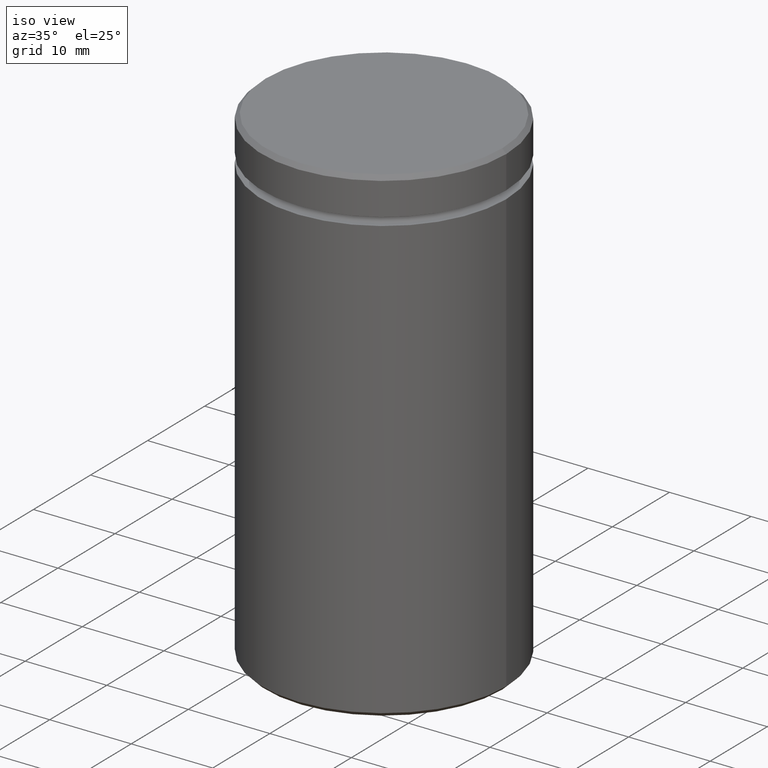
[diagram: clean part render]
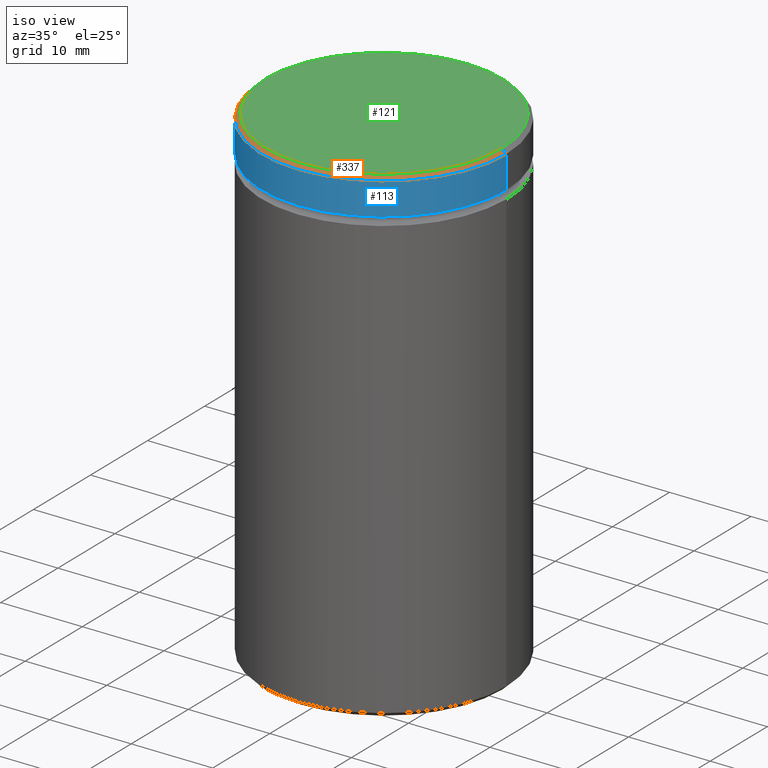
[diagram: same view with three faces highlighted in distinct colors, each labeled with its STEP entity id]
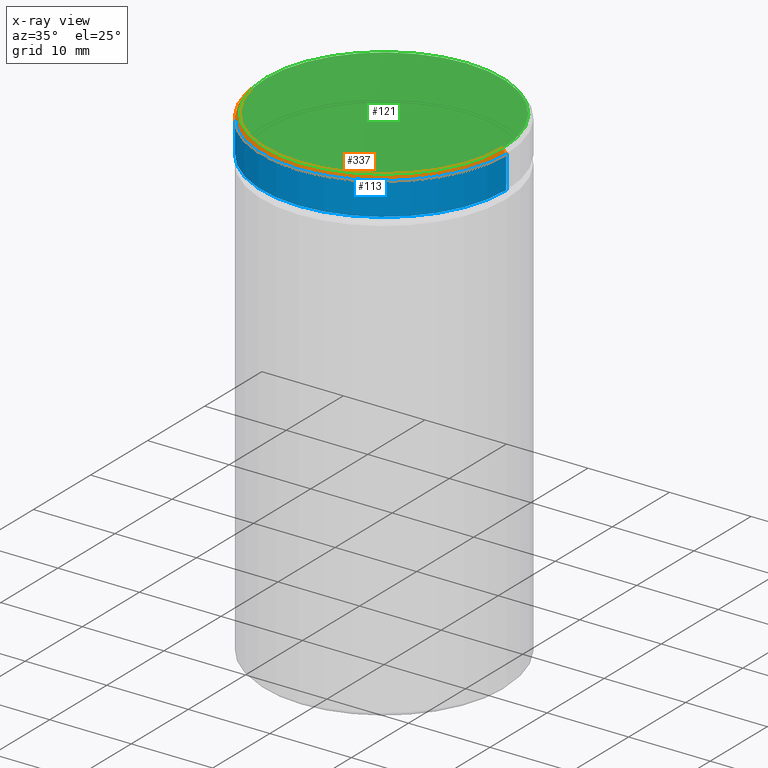
[diagram: x-ray of the same camera — body ghosted, the three highlighted faces saturated]
A machine part, iso view with three faces highlighted in distinct colors.
The next image is the same camera in x-ray (body ghosted, the three faces saturated) — at least one of them is partly hidden behind the body in this view.
Their STEP definitions:

[orange] entity #337 — the highlighted conical surface has half-angle 45 deg.
#23 = AXIS2_PLACEMENT_3D ( 'NONE', #543, #449, #267 ) ;
#29 = DIRECTION ( 'NONE',  ( 1.000000000000000000, 0.000000000000000000, 0.000000000000000000 ) ) ;
#36 = EDGE_CURVE ( 'NONE', #322, #448, #150, .T. ) ;
#64 = CARTESIAN_POINT ( 'NONE',  ( -14.50000000000000355, 0.000000000000000000, 0.000000000000000000 ) ) ;
#150 = CIRCLE ( 'NONE', #488, 14.50000000000000355 ) ;
#180 = EDGE_CURVE ( 'NONE', #322, #218, #326, .T. ) ;
#193 = VERTEX_POINT ( 'NONE', #194 ) ;
#194 = CARTESIAN_POINT ( 'NONE',  ( 15.00000000000000000, 0.000000000000000000, -0.5000000000000038858 ) ) ;
#200 = CIRCLE ( 'NONE', #510, 15.00000000000000000 ) ;
#203 = VECTOR ( 'NONE', #264, 1000.000000000000000 ) ;
#218 = VERTEX_POINT ( 'NONE', #555 ) ;
#230 = CARTESIAN_POINT ( 'NONE',  ( -14.50000000000000355, 0.000000000000000000, 0.000000000000000000 ) ) ;
#238 = DIRECTION ( 'NONE',  ( -0.7071067811865414665, 0.000000000000000000, -0.7071067811865536790 ) ) ;
#254 = CARTESIAN_POINT ( 'NONE',  ( 0.000000000000000000, 0.000000000000000000, 0.000000000000000000 ) ) ;
#264 = DIRECTION ( 'NONE',  ( 0.7071067811865414665, 8.659560562354858902E-17, -0.7071067811865536790 ) ) ;
#267 = DIRECTION ( 'NONE',  ( -1.000000000000000000, 0.000000000000000000, 0.000000000000000000 ) ) ;
#284 = EDGE_LOOP ( 'NONE', ( #556, #517, #289, #514 ) ) ;
#289 = ORIENTED_EDGE ( 'NONE', *, *, #180, .T. ) ;
#302 = DIRECTION ( 'NONE',  ( 1.000000000000000000, 0.000000000000000000, 0.000000000000000000 ) ) ;
#304 = EDGE_CURVE ( 'NONE', #448, #193, #515, .T. ) ;
#310 = DIRECTION ( 'NONE',  ( 0.000000000000000000, 0.000000000000000000, -1.000000000000000000 ) ) ;
#322 = VERTEX_POINT ( 'NONE', #230 ) ;
#326 = LINE ( 'NONE', #64, #560 ) ;
#337 = ADVANCED_FACE ( 'NONE', ( #484 ), #559, .T. ) ;
#415 = DIRECTION ( 'NONE',  ( -0.000000000000000000, -0.000000000000000000, 1.000000000000000000 ) ) ;
#425 = CARTESIAN_POINT ( 'NONE',  ( 0.000000000000000000, 0.000000000000000000, -0.5000000000000038858 ) ) ;
#442 = CARTESIAN_POINT ( 'NONE',  ( 14.50000000000000355, 1.775737858763662804E-15, 0.000000000000000000 ) ) ;
#448 = VERTEX_POINT ( 'NONE', #500 ) ;
#449 = DIRECTION ( 'NONE',  ( 0.000000000000000000, 0.000000000000000000, -1.000000000000000000 ) ) ;
#484 = FACE_OUTER_BOUND ( 'NONE', #284, .T. ) ;
#488 = AXIS2_PLACEMENT_3D ( 'NONE', #254, #415, #29 ) ;
#500 = CARTESIAN_POINT ( 'NONE',  ( 14.50000000000000355, 1.806354028742346196E-15, 0.000000000000000000 ) ) ;
#510 = AXIS2_PLACEMENT_3D ( 'NONE', #425, #310, #302 ) ;
#514 = ORIENTED_EDGE ( 'NONE', *, *, #546, .F. ) ;
#515 = LINE ( 'NONE', #442, #203 ) ;
#517 = ORIENTED_EDGE ( 'NONE', *, *, #36, .F. ) ;
#543 = CARTESIAN_POINT ( 'NONE',  ( 0.000000000000000000, 0.000000000000000000, 0.000000000000000000 ) ) ;
#546 = EDGE_CURVE ( 'NONE', #193, #218, #200, .T. ) ;
#555 = CARTESIAN_POINT ( 'NONE',  ( -15.00000000000000000, 1.836970198721029589E-15, -0.5000000000000038858 ) ) ;
#556 = ORIENTED_EDGE ( 'NONE', *, *, #304, .F. ) ;
#559 = CONICAL_SURFACE ( 'NONE', #23, 14.50000000000000355, 0.7853981633974396193 ) ;
#560 = VECTOR ( 'NONE', #238, 1000.000000000000000 ) ;

[blue] entity #113 — the highlighted cylindrical surface (partial cylindrical patch) has radius 15 mm, axis along (-0, -0, 1).
#5 = LINE ( 'NONE', #181, #174 ) ;
#18 = CYLINDRICAL_SURFACE ( 'NONE', #43, 15.00000000000000000 ) ;
#33 = LINE ( 'NONE', #427, #423 ) ;
#38 = ORIENTED_EDGE ( 'NONE', *, *, #139, .T. ) ;
#43 = AXIS2_PLACEMENT_3D ( 'NONE', #154, #61, #56 ) ;
#56 = DIRECTION ( 'NONE',  ( 1.000000000000000000, 0.000000000000000000, 0.000000000000000000 ) ) ;
#61 = DIRECTION ( 'NONE',  ( -0.000000000000000000, -0.000000000000000000, 1.000000000000000000 ) ) ;
#70 = CARTESIAN_POINT ( 'NONE',  ( 0.000000000000000000, 0.000000000000000000, -4.500000000000000888 ) ) ;
#110 = ORIENTED_EDGE ( 'NONE', *, *, #220, .T. ) ;
#111 = DIRECTION ( 'NONE',  ( -0.000000000000000000, -0.000000000000000000, 1.000000000000000000 ) ) ;
#113 = ADVANCED_FACE ( 'NONE', ( #318 ), #18, .T. ) ;
#116 = CIRCLE ( 'NONE', #305, 15.00000000000000000 ) ;
#139 = EDGE_CURVE ( 'NONE', #332, #242, #116, .T. ) ;
#154 = CARTESIAN_POINT ( 'NONE',  ( 0.000000000000000000, 0.000000000000000000, 0.000000000000000000 ) ) ;
#162 = CARTESIAN_POINT ( 'NONE',  ( 15.00000000000000000, 0.000000000000000000, -4.500000000000000888 ) ) ;
#174 = VECTOR ( 'NONE', #111, 1000.000000000000000 ) ;
#181 = CARTESIAN_POINT ( 'NONE',  ( -15.00000000000000000, 1.836970198721029589E-15, 0.000000000000000000 ) ) ;
#193 = VERTEX_POINT ( 'NONE', #194 ) ;
#194 = CARTESIAN_POINT ( 'NONE',  ( 15.00000000000000000, 0.000000000000000000, -0.5000000000000038858 ) ) ;
#200 = CIRCLE ( 'NONE', #510, 15.00000000000000000 ) ;
#218 = VERTEX_POINT ( 'NONE', #555 ) ;
#220 = EDGE_CURVE ( 'NONE', #242, #193, #33, .T. ) ;
#242 = VERTEX_POINT ( 'NONE', #162 ) ;
#248 = DIRECTION ( 'NONE',  ( -0.000000000000000000, -0.000000000000000000, 1.000000000000000000 ) ) ;
#295 = ORIENTED_EDGE ( 'NONE', *, *, #546, .T. ) ;
#302 = DIRECTION ( 'NONE',  ( 1.000000000000000000, 0.000000000000000000, 0.000000000000000000 ) ) ;
#305 = AXIS2_PLACEMENT_3D ( 'NONE', #70, #248, #552 ) ;
#310 = DIRECTION ( 'NONE',  ( 0.000000000000000000, 0.000000000000000000, -1.000000000000000000 ) ) ;
#318 = FACE_OUTER_BOUND ( 'NONE', #348, .T. ) ;
#332 = VERTEX_POINT ( 'NONE', #532 ) ;
#348 = EDGE_LOOP ( 'NONE', ( #553, #38, #110, #295 ) ) ;
#351 = EDGE_CURVE ( 'NONE', #332, #218, #5, .T. ) ;
#423 = VECTOR ( 'NONE', #524, 1000.000000000000000 ) ;
#425 = CARTESIAN_POINT ( 'NONE',  ( 0.000000000000000000, 0.000000000000000000, -0.5000000000000038858 ) ) ;
#427 = CARTESIAN_POINT ( 'NONE',  ( 15.00000000000000000, 0.000000000000000000, 0.000000000000000000 ) ) ;
#510 = AXIS2_PLACEMENT_3D ( 'NONE', #425, #310, #302 ) ;
#524 = DIRECTION ( 'NONE',  ( -0.000000000000000000, -0.000000000000000000, 1.000000000000000000 ) ) ;
#532 = CARTESIAN_POINT ( 'NONE',  ( -15.00000000000000000, 1.836970198721029589E-15, -4.500000000000000888 ) ) ;
#546 = EDGE_CURVE ( 'NONE', #193, #218, #200, .T. ) ;
#552 = DIRECTION ( 'NONE',  ( 1.000000000000000000, 0.000000000000000000, 0.000000000000000000 ) ) ;
#553 = ORIENTED_EDGE ( 'NONE', *, *, #351, .F. ) ;
#555 = CARTESIAN_POINT ( 'NONE',  ( -15.00000000000000000, 1.836970198721029589E-15, -0.5000000000000038858 ) ) ;

[green] entity #121 — the highlighted planar face has unit normal (0, -0, 1).
#9 = CARTESIAN_POINT ( 'NONE',  ( 0.000000000000000000, 0.000000000000000000, 0.000000000000000000 ) ) ;
#29 = DIRECTION ( 'NONE',  ( 1.000000000000000000, 0.000000000000000000, 0.000000000000000000 ) ) ;
#36 = EDGE_CURVE ( 'NONE', #322, #448, #150, .T. ) ;
#47 = FACE_OUTER_BOUND ( 'NONE', #414, .T. ) ;
#58 = ORIENTED_EDGE ( 'NONE', *, *, #36, .T. ) ;
#121 = ADVANCED_FACE ( 'NONE', ( #47 ), #394, .T. ) ;
#132 = DIRECTION ( 'NONE',  ( 1.000000000000000000, 0.000000000000000000, 0.000000000000000000 ) ) ;
#150 = CIRCLE ( 'NONE', #488, 14.50000000000000355 ) ;
#171 = DIRECTION ( 'NONE',  ( -0.000000000000000000, -0.000000000000000000, 1.000000000000000000 ) ) ;
#225 = EDGE_CURVE ( 'NONE', #448, #322, #502, .T. ) ;
#230 = CARTESIAN_POINT ( 'NONE',  ( -14.50000000000000355, 0.000000000000000000, 0.000000000000000000 ) ) ;
#254 = CARTESIAN_POINT ( 'NONE',  ( 0.000000000000000000, 0.000000000000000000, 0.000000000000000000 ) ) ;
#257 = AXIS2_PLACEMENT_3D ( 'NONE', #563, #171, #132 ) ;
#286 = DIRECTION ( 'NONE',  ( 1.000000000000000000, 0.000000000000000000, 0.000000000000000000 ) ) ;
#322 = VERTEX_POINT ( 'NONE', #230 ) ;
#345 = AXIS2_PLACEMENT_3D ( 'NONE', #9, #353, #286 ) ;
#353 = DIRECTION ( 'NONE',  ( 0.000000000000000000, -0.000000000000000000, 1.000000000000000000 ) ) ;
#371 = ORIENTED_EDGE ( 'NONE', *, *, #225, .T. ) ;
#394 = PLANE ( 'NONE',  #345 ) ;
#414 = EDGE_LOOP ( 'NONE', ( #58, #371 ) ) ;
#415 = DIRECTION ( 'NONE',  ( -0.000000000000000000, -0.000000000000000000, 1.000000000000000000 ) ) ;
#448 = VERTEX_POINT ( 'NONE', #500 ) ;
#488 = AXIS2_PLACEMENT_3D ( 'NONE', #254, #415, #29 ) ;
#500 = CARTESIAN_POINT ( 'NONE',  ( 14.50000000000000355, 1.806354028742346196E-15, 0.000000000000000000 ) ) ;
#502 = CIRCLE ( 'NONE', #257, 14.50000000000000355 ) ;
#563 = CARTESIAN_POINT ( 'NONE',  ( 0.000000000000000000, 0.000000000000000000, 0.000000000000000000 ) ) ;